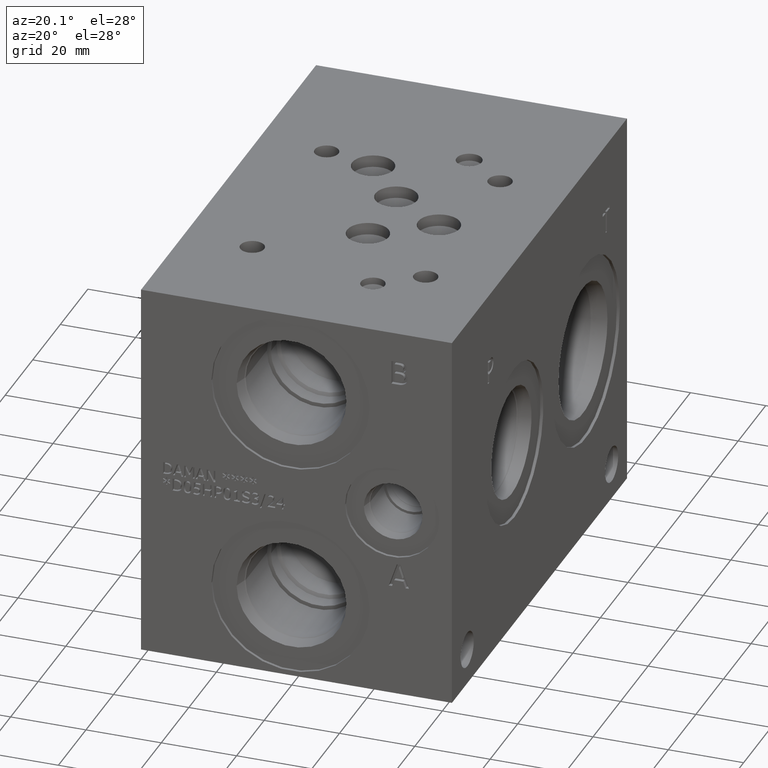
[diagram: clean part render]
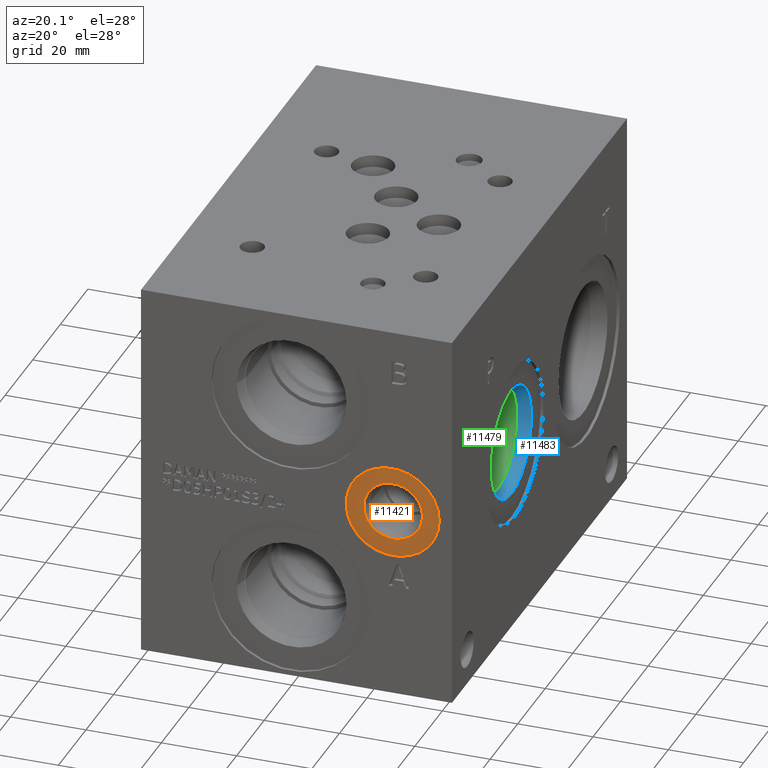
[diagram: same view with three faces highlighted in distinct colors, each labeled with its STEP entity id]
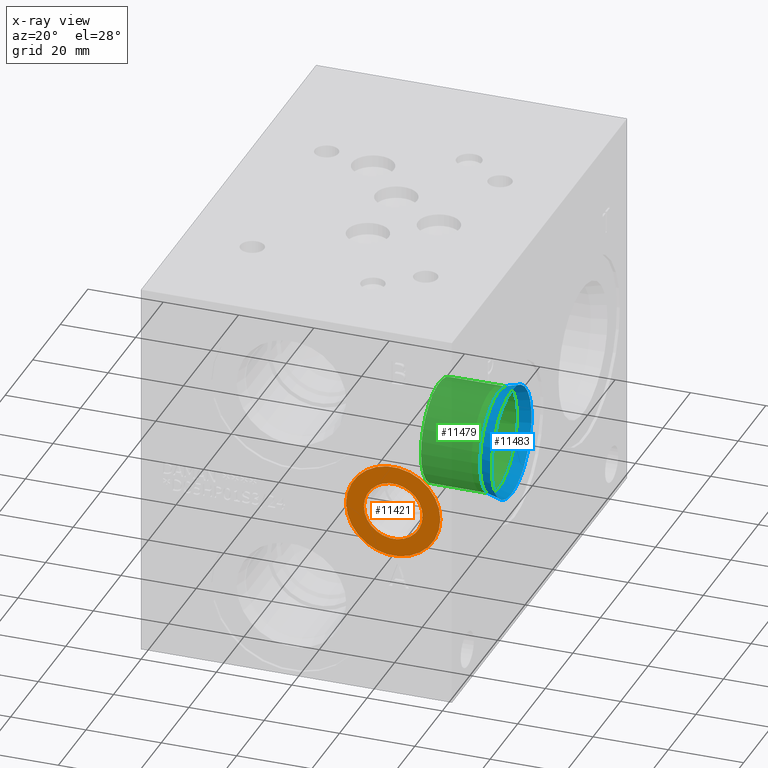
[diagram: x-ray of the same camera — body ghosted, the three highlighted faces saturated]
A machine part, auxiliary view with three faces highlighted in distinct colors.
The next image is the same camera in x-ray (body ghosted, the three faces saturated) — at least one of them is partly hidden behind the body in this view.
Their STEP definitions:

[orange] entity #11421 — the highlighted planar face has unit normal (0, 1, 0).
#175=CIRCLE('',#11940,12.5095);
#176=CIRCLE('',#11941,12.5095);
#177=CIRCLE('',#11943,7.7978);
#178=CIRCLE('',#11944,7.7978);
#418=FACE_BOUND('',#1983,.T.);
#1334=FACE_OUTER_BOUND('',#1982,.T.);
#1982=EDGE_LOOP('',(#9545,#9546));
#1983=EDGE_LOOP('',(#9547,#9548));
#5179=VERTEX_POINT('',#19173);
#5180=VERTEX_POINT('',#19175);
#5181=VERTEX_POINT('',#19179);
#5182=VERTEX_POINT('',#19180);
#6693=EDGE_CURVE('',#5179,#5180,#175,.T.);
#6694=EDGE_CURVE('',#5180,#5179,#176,.T.);
#6695=EDGE_CURVE('',#5181,#5182,#177,.T.);
#6696=EDGE_CURVE('',#5182,#5181,#178,.T.);
#9545=ORIENTED_EDGE('',*,*,#6694,.F.);
#9546=ORIENTED_EDGE('',*,*,#6693,.F.);
#9547=ORIENTED_EDGE('',*,*,#6695,.T.);
#9548=ORIENTED_EDGE('',*,*,#6696,.T.);
#10484=PLANE('',#11942);
#11421=ADVANCED_FACE('',(#1334,#418),#10484,.F.);
#11940=AXIS2_PLACEMENT_3D('',#19176,#13999,#14000);
#11941=AXIS2_PLACEMENT_3D('',#19177,#14001,#14002);
#11942=AXIS2_PLACEMENT_3D('',#19178,#14003,#14004);
#11943=AXIS2_PLACEMENT_3D('',#19181,#14005,#14006);
#11944=AXIS2_PLACEMENT_3D('',#19182,#14007,#14008);
#13999=DIRECTION('center_axis',(0.,1.,0.));
#14000=DIRECTION('ref_axis',(1.,0.,0.));
#14001=DIRECTION('center_axis',(0.,1.,0.));
#14002=DIRECTION('ref_axis',(1.,0.,0.));
#14003=DIRECTION('center_axis',(0.,1.,0.));
#14004=DIRECTION('ref_axis',(0.,0.,1.));
#14005=DIRECTION('center_axis',(0.,1.,0.));
#14006=DIRECTION('ref_axis',(1.,0.,0.));
#14007=DIRECTION('center_axis',(0.,1.,0.));
#14008=DIRECTION('ref_axis',(1.,0.,0.));
#19173=CARTESIAN_POINT('',(54.1655,0.7874,50.8));
#19175=CARTESIAN_POINT('',(79.1845,0.7874,50.8));
#19176=CARTESIAN_POINT('Origin',(66.675,0.7874,50.8));
#19177=CARTESIAN_POINT('Origin',(66.675,0.7874,50.8));
#19178=CARTESIAN_POINT('Origin',(74.4728,0.7874,50.8));
#19179=CARTESIAN_POINT('',(74.4728,0.7874,50.8));
#19180=CARTESIAN_POINT('',(58.8772,0.787399999999999,50.8));
#19181=CARTESIAN_POINT('Origin',(66.675,0.7874,50.8));
#19182=CARTESIAN_POINT('Origin',(66.675,0.7874,50.8));

[blue] entity #11483 — the highlighted conical surface has half-angle 15.007 deg.
#105=CONICAL_SURFACE('',#12106,14.15415,0.26192213729776);
#277=CIRCLE('',#12104,14.5923);
#278=CIRCLE('',#12105,14.5923);
#279=CIRCLE('',#12107,13.716);
#280=CIRCLE('',#12108,13.716);
#1396=FACE_OUTER_BOUND('',#2055,.T.);
#2055=EDGE_LOOP('',(#9837,#9838,#9839,#9840,#9841,#9842));
#3170=LINE('',#19510,#4250);
#4250=VECTOR('',#14384,14.15415);
#5294=VERTEX_POINT('',#19504);
#5295=VERTEX_POINT('',#19505);
#5296=VERTEX_POINT('',#19509);
#5297=VERTEX_POINT('',#19511);
#6846=EDGE_CURVE('',#5294,#5295,#277,.T.);
#6847=EDGE_CURVE('',#5295,#5294,#278,.T.);
#6848=EDGE_CURVE('',#5295,#5296,#3170,.T.);
#6849=EDGE_CURVE('',#5296,#5297,#279,.T.);
#6850=EDGE_CURVE('',#5297,#5296,#280,.T.);
#9837=ORIENTED_EDGE('',*,*,#6846,.F.);
#9838=ORIENTED_EDGE('',*,*,#6847,.F.);
#9839=ORIENTED_EDGE('',*,*,#6848,.T.);
#9840=ORIENTED_EDGE('',*,*,#6849,.T.);
#9841=ORIENTED_EDGE('',*,*,#6850,.T.);
#9842=ORIENTED_EDGE('',*,*,#6848,.F.);
#11483=ADVANCED_FACE('',(#1396),#105,.F.);
#12104=AXIS2_PLACEMENT_3D('',#19506,#14378,#14379);
#12105=AXIS2_PLACEMENT_3D('',#19507,#14380,#14381);
#12106=AXIS2_PLACEMENT_3D('',#19508,#14382,#14383);
#12107=AXIS2_PLACEMENT_3D('',#19512,#14385,#14386);
#12108=AXIS2_PLACEMENT_3D('',#19513,#14387,#14388);
#14378=DIRECTION('center_axis',(-1.,0.,0.));
#14379=DIRECTION('ref_axis',(0.,0.,1.));
#14380=DIRECTION('center_axis',(-1.,0.,0.));
#14381=DIRECTION('ref_axis',(0.,0.,1.));
#14382=DIRECTION('center_axis',(1.,0.,0.));
#14383=DIRECTION('ref_axis',(0.,0.,-1.));
#14384=DIRECTION('',(-0.965894049104116,-3.17107115342794E-17,-0.258937610063225));
#14385=DIRECTION('center_axis',(-1.,0.,0.));
#14386=DIRECTION('ref_axis',(0.,0.,1.));
#14387=DIRECTION('center_axis',(-1.,0.,0.));
#14388=DIRECTION('ref_axis',(0.,0.,1.));
#19504=CARTESIAN_POINT('',(81.7626,45.2882,36.2077));
#19505=CARTESIAN_POINT('',(81.7626,45.2882,65.3923));
#19506=CARTESIAN_POINT('Origin',(81.7626,45.2882,50.8));
#19507=CARTESIAN_POINT('Origin',(81.7626,45.2882,50.8));
#19508=CARTESIAN_POINT('Origin',(80.12820445,45.2882,50.8));
#19509=CARTESIAN_POINT('',(78.4938089,45.2882,64.516));
#19510=CARTESIAN_POINT('',(80.12820445,45.2882,64.95415));
#19511=CARTESIAN_POINT('',(78.4938089,45.2882,37.084));
#19512=CARTESIAN_POINT('Origin',(78.4938089,45.2882,50.8));
#19513=CARTESIAN_POINT('Origin',(78.4938089,45.2882,50.8));

[green] entity #11479 — the highlighted cylindrical surface (bore or boss wall) has radius 13.5001 mm, axis along (1, 0, 0).
#49=CYLINDRICAL_SURFACE('',#12096,13.5001);
#270=CIRCLE('',#12093,13.5001);
#271=CIRCLE('',#12094,13.5001);
#273=CIRCLE('',#12097,13.5001);
#274=CIRCLE('',#12098,13.5001);
#1392=FACE_OUTER_BOUND('',#2050,.T.);
#2050=EDGE_LOOP('',(#9816,#9817,#9818,#9819,#9820,#9821));
#3167=LINE('',#19493,#4247);
#4247=VECTOR('',#14363,13.5001);
#5287=VERTEX_POINT('',#19483);
#5288=VERTEX_POINT('',#19484);
#5290=VERTEX_POINT('',#19490);
#5291=VERTEX_POINT('',#19491);
#6836=EDGE_CURVE('',#5287,#5288,#270,.T.);
#6837=EDGE_CURVE('',#5288,#5287,#271,.T.);
#6839=EDGE_CURVE('',#5290,#5291,#273,.T.);
#6840=EDGE_CURVE('',#5290,#5288,#3167,.T.);
#6841=EDGE_CURVE('',#5291,#5290,#274,.T.);
#9816=ORIENTED_EDGE('',*,*,#6839,.F.);
#9817=ORIENTED_EDGE('',*,*,#6840,.T.);
#9818=ORIENTED_EDGE('',*,*,#6836,.F.);
#9819=ORIENTED_EDGE('',*,*,#6837,.F.);
#9820=ORIENTED_EDGE('',*,*,#6840,.F.);
#9821=ORIENTED_EDGE('',*,*,#6841,.F.);
#11479=ADVANCED_FACE('',(#1392),#49,.F.);
#12093=AXIS2_PLACEMENT_3D('',#19485,#14353,#14354);
#12094=AXIS2_PLACEMENT_3D('',#19486,#14355,#14356);
#12096=AXIS2_PLACEMENT_3D('',#19489,#14359,#14360);
#12097=AXIS2_PLACEMENT_3D('',#19492,#14361,#14362);
#12098=AXIS2_PLACEMENT_3D('',#19494,#14364,#14365);
#14353=DIRECTION('center_axis',(1.,0.,0.));
#14354=DIRECTION('ref_axis',(0.,1.,0.));
#14355=DIRECTION('center_axis',(1.,0.,0.));
#14356=DIRECTION('ref_axis',(0.,1.,0.));
#14359=DIRECTION('center_axis',(1.,0.,0.));
#14360=DIRECTION('ref_axis',(0.,1.,0.));
#14361=DIRECTION('center_axis',(-1.,0.,0.));
#14362=DIRECTION('ref_axis',(0.,1.,0.));
#14363=DIRECTION('',(-1.,0.,0.));
#14364=DIRECTION('center_axis',(-1.,0.,0.));
#14365=DIRECTION('ref_axis',(0.,1.,0.));
#19483=CARTESIAN_POINT('',(62.7126,58.7883,50.8));
#19484=CARTESIAN_POINT('',(62.7126,31.7881,50.8));
#19485=CARTESIAN_POINT('Origin',(62.7126,45.2882,50.8));
#19486=CARTESIAN_POINT('Origin',(62.7126,45.2882,50.8));
#19489=CARTESIAN_POINT('Origin',(72.6313,45.2882,50.8));
#19490=CARTESIAN_POINT('',(78.2701,31.7881,50.8));
#19491=CARTESIAN_POINT('',(78.2701,45.2882,64.3001));
#19492=CARTESIAN_POINT('Origin',(78.2701,45.2882,50.8));
#19493=CARTESIAN_POINT('',(72.6313,31.7881,50.8));
#19494=CARTESIAN_POINT('Origin',(78.2701,45.2882,50.8));